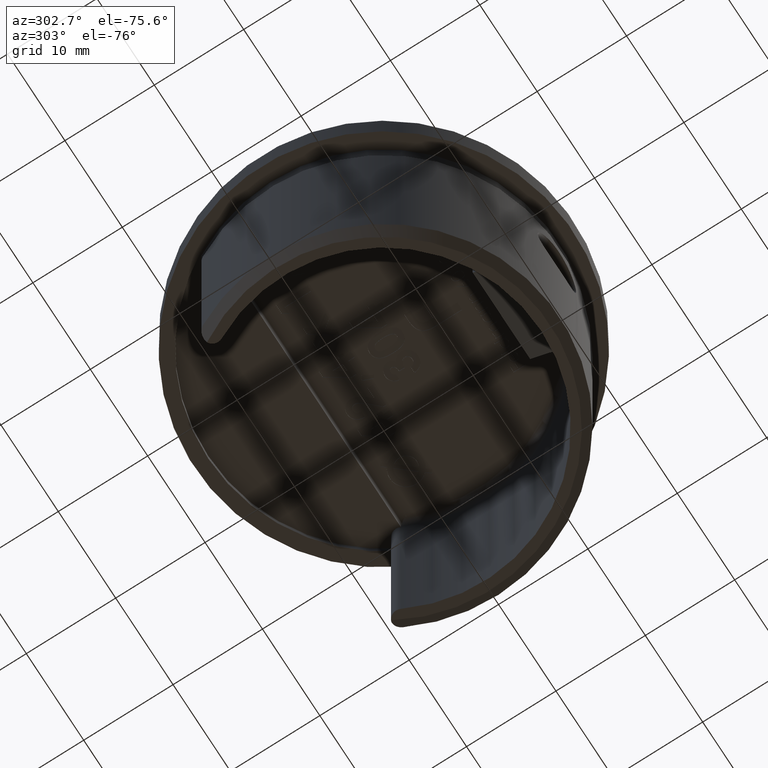
[diagram: clean part render]
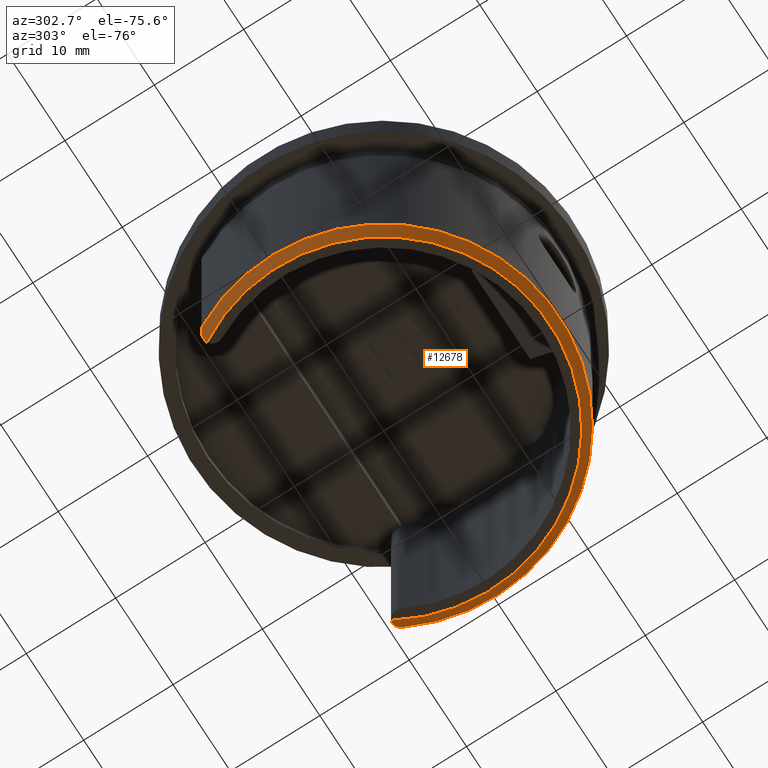
[diagram: same view with one face highlighted and labeled with its STEP entity id]
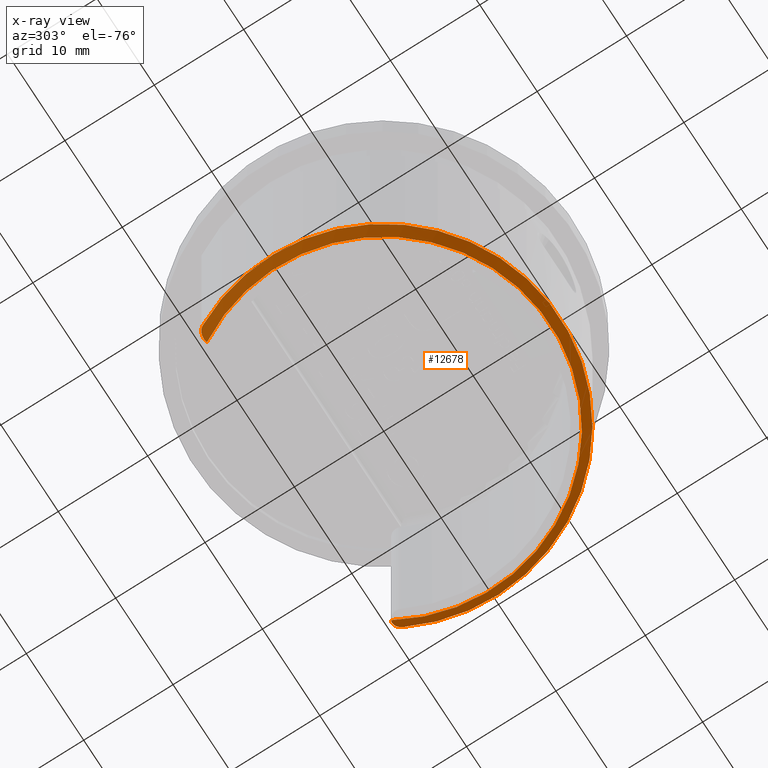
[diagram: x-ray of the same camera — body ghosted, the highlighted face saturated]
A machine part, auxiliary view. The second image highlights one B-rep face of the part: STEP entity #12678.
The next image is the same camera in x-ray: the body ghosted, the highlighted face saturated — about 0% of this face is hidden behind the body in this view.
In plain terms, the highlighted conical surface has half-angle 45 deg.
Its self-contained STEP definition (entity closure, byte-faithful):
#307 = CARTESIAN_POINT ( 'NONE',  ( 16.26146070866729700, 9.589311601285530200, -29.77175996646678900 ) ) ;
#511 = ORIENTED_EDGE ( 'NONE', *, *, #12078, .F. ) ;
#828 = EDGE_CURVE ( 'NONE', #22059, #7058, #16022, .T. ) ;
#1106 = CARTESIAN_POINT ( 'NONE',  ( -16.62071599507815000, 9.620347376886023500, -29.44605245900519800 ) ) ;
#1268 = CARTESIAN_POINT ( 'NONE',  ( -16.26096698020148800, 9.589018114178621500, -29.77233263076176300 ) ) ;
#2196 = VERTEX_POINT ( 'NONE', #23287 ) ;
#3039 = CARTESIAN_POINT ( 'NONE',  ( -17.43442953020134600, 9.064390048781183000, -28.99999999999998900 ) ) ;
#3202 = ORIENTED_EDGE ( 'NONE', *, *, #18483, .F. ) ;
#3314 = ORIENTED_EDGE ( 'NONE', *, *, #828, .F. ) ;
#3343 = AXIS2_PLACEMENT_3D ( 'NONE', #17743, #21410, #19496 ) ;
#4796 = DIRECTION ( 'NONE',  ( 0.0000000000000000000, 0.0000000000000000000, 1.000000000000000000 ) ) ;
#5692 = CARTESIAN_POINT ( 'NONE',  ( 17.00719251584250800, 9.508377787096511800, -29.16576373233185000 ) ) ;
#5851 = CARTESIAN_POINT ( 'NONE',  ( 16.15152690021750500, 9.553047981789150700, -29.88480585832184700 ) ) ;
#6024 = CONICAL_SURFACE ( 'NONE', #3343, 18.64999999999999100, 0.7853981633974466100 ) ;
#6252 = DIRECTION ( 'NONE',  ( -1.000000000000000000, 0.0000000000000000000, 0.0000000000000000000 ) ) ;
#7058 = VERTEX_POINT ( 'NONE', #21773 ) ;
#7980 = DIRECTION ( 'NONE',  ( -1.000000000000000000, 0.0000000000000000000, 0.0000000000000000000 ) ) ;
#8002 = AXIS2_PLACEMENT_3D ( 'NONE', #13816, #4796, #6252 ) ;
#8449 = CARTESIAN_POINT ( 'NONE',  ( -16.15154698348913300, 9.553058502822533900, -29.88478321659462000 ) ) ;
#9486 = CARTESIAN_POINT ( 'NONE',  ( 17.35857228366469900, 9.210293723709220600, -28.99999999999998900 ) ) ;
#11242 = CARTESIAN_POINT ( 'NONE',  ( 17.24934729393040200, 9.332089195451477100, -29.03853681288108000 ) ) ;
#11440 = DIRECTION ( 'NONE',  ( 0.0000000000000000000, 0.0000000000000000000, -1.000000000000000000 ) ) ;
#11498 = FACE_OUTER_BOUND ( 'NONE', #15171, .T. ) ;
#12078 = EDGE_CURVE ( 'NONE', #2196, #22059, #17909, .T. ) ;
#12208 = CARTESIAN_POINT ( 'NONE',  ( -17.24916146630844300, 9.332483068033948100, -29.03851880545470000 ) ) ;
#12290 = CARTESIAN_POINT ( 'NONE',  ( -16.04934939335357000, 9.499520201044955300, -30.00000000000000000 ) ) ;
#12678 = ADVANCED_FACE ( 'NONE', ( #11498 ), #6024, .T. ) ;
#13159 = CARTESIAN_POINT ( 'NONE',  ( 16.87683136703081400, 9.563162075065966100, -29.25222443315035300 ) ) ;
#13816 = CARTESIAN_POINT ( 'NONE',  ( 0.0000000000000000000, 0.0000000000000000000, -28.99999999999998900 ) ) ;
#13991 = CARTESIAN_POINT ( 'NONE',  ( -16.87471753692897300, 9.563805867100285200, -29.25374283705756200 ) ) ;
#14070 = CARTESIAN_POINT ( 'NONE',  ( -16.49516521522231800, 9.622940818501057000, -29.55315535874557000 ) ) ;
#14147 = CARTESIAN_POINT ( 'NONE',  ( -17.35854216710125200, 9.210351649846590000, -28.99999999999998900 ) ) ;
#14861 = CARTESIAN_POINT ( 'NONE',  ( 16.49842554502297900, 9.623187547048818400, -29.55021650834862300 ) ) ;
#15171 = EDGE_LOOP ( 'NONE', ( #511, #3202, #22487, #3314 ) ) ;
#15312 = B_SPLINE_CURVE_WITH_KNOTS ( 'NONE', 3,
 ( #12290, #8449, #1268, #14070, #1106, #13991, #23231, #12208, #14147, #3039 ),
 .UNSPECIFIED., .F., .F.,
 ( 4, 2, 2, 2, 4 ),
 ( 0.0000000000000000000, 0.0004823152857663535900, 0.0009646305715327071900, 0.001446945857299060800, 0.001929261143065414400 ),
 .UNSPECIFIED. ) ;
#16022 = CIRCLE ( 'NONE', #20676, 18.64999999999999100 ) ;
#16648 = CARTESIAN_POINT ( 'NONE',  ( 16.04934939335357000, 9.499520201044955300, -30.00000000000000000 ) ) ;
#16974 = CARTESIAN_POINT ( 'NONE',  ( 16.04934939335357000, 9.499520201044955300, -30.00000000000000000 ) ) ;
#17743 = CARTESIAN_POINT ( 'NONE',  ( 0.0000000000000000000, 0.0000000000000000000, -30.00000000000000000 ) ) ;
#17872 = CARTESIAN_POINT ( 'NONE',  ( -17.43442953020134600, 9.064390048781183000, -28.99999999999998900 ) ) ;
#17909 = B_SPLINE_CURVE_WITH_KNOTS ( 'NONE', 3,
 ( #20486, #9486, #11242, #5692, #13159, #22338, #14861, #307, #5851, #16648 ),
 .UNSPECIFIED., .F., .F.,
 ( 4, 2, 2, 2, 4 ),
 ( 0.0000000000000000000, 0.0004849988386717751400, 0.0009699976773435502800, 0.001454996516015325400, 0.001939995354687100600 ),
 .UNSPECIFIED. ) ;
#18483 = EDGE_CURVE ( 'NONE', #21038, #2196, #20297, .T. ) ;
#19496 = DIRECTION ( 'NONE',  ( 1.000000000000000000, 0.0000000000000000000, 0.0000000000000000000 ) ) ;
#20297 = CIRCLE ( 'NONE', #8002, 19.65000000000000200 ) ;
#20486 = CARTESIAN_POINT ( 'NONE',  ( 17.43442953020134200, 9.064390048781186600, -28.99999999999998900 ) ) ;
#20596 = CARTESIAN_POINT ( 'NONE',  ( 0.0000000000000000000, 0.0000000000000000000, -30.00000000000000000 ) ) ;
#20676 = AXIS2_PLACEMENT_3D ( 'NONE', #20596, #11440, #7980 ) ;
#21038 = VERTEX_POINT ( 'NONE', #17872 ) ;
#21410 = DIRECTION ( 'NONE',  ( 0.0000000000000000000, 0.0000000000000000000, 1.000000000000000000 ) ) ;
#21773 = CARTESIAN_POINT ( 'NONE',  ( -16.04934939335357000, 9.499520201044955300, -30.00000000000000000 ) ) ;
#22059 = VERTEX_POINT ( 'NONE', #16974 ) ;
#22237 = EDGE_CURVE ( 'NONE', #7058, #21038, #15312, .T. ) ;
#22338 = CARTESIAN_POINT ( 'NONE',  ( 16.62117207862095800, 9.620417365846615000, -29.44562595040114800 ) ) ;
#22487 = ORIENTED_EDGE ( 'NONE', *, *, #22237, .F. ) ;
#23231 = CARTESIAN_POINT ( 'NONE',  ( -17.00506877246755300, 9.509662821747227200, -29.16699627681202900 ) ) ;
#23287 = CARTESIAN_POINT ( 'NONE',  ( 17.43442953020134200, 9.064390048781186600, -28.99999999999998900 ) ) ;